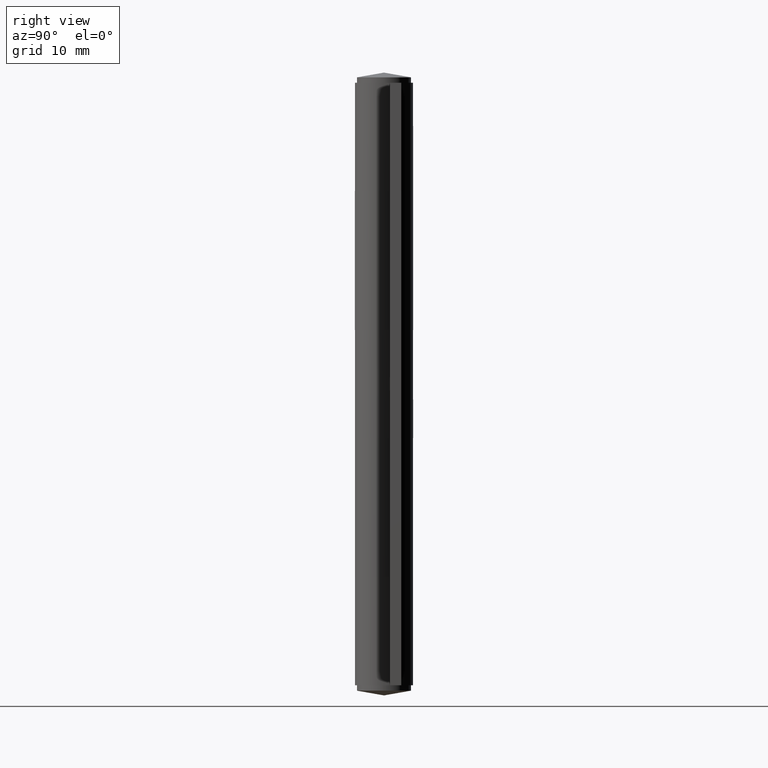
[diagram: clean part render]
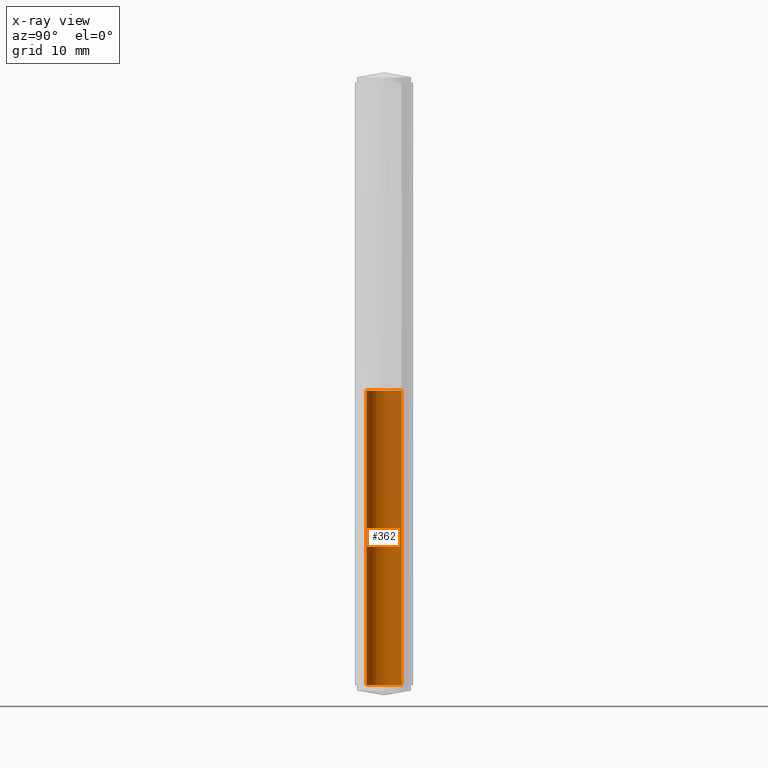
[diagram: x-ray — body ghosted, one internal face saturated and labeled with its STEP entity id]
A machine part, right view, then the same camera in x-ray: the body is ghosted and one INTERNAL B-rep face — a face not visible from any outside direction — is saturated and labeled: STEP entity #362.
In plain terms, the highlighted face is a freeform B-spline surface patch.
Its self-contained STEP definition (entity closure, byte-faithful):
#229=CARTESIAN_POINT('',(-2.599990999999949,0.0,-0.000007629394531));
#230=VERTEX_POINT('',#229);
#231=CARTESIAN_POINT('',(-0.158725653697154,-2.595141492662662,-0.000007629394531));
#232=VERTEX_POINT('',#231);
#233=CARTESIAN_POINT('',(-2.599990999999949,0.0,-0.000007629394531));
#234=CARTESIAN_POINT('',(-2.599990999999949,-2.445827307275927,-0.000007629394531));
#235=CARTESIAN_POINT('',(-0.158725653697155,-2.595141492662664,-0.000007629394531));
#243=(BOUNDED_CURVE()B_SPLINE_CURVE(2,(#233,#234,#235),.UNSPECIFIED.,.F.,.U.)B_SPLINE_CURVE_WITH_KNOTS((3,3),(0.500000000000000,0.739332962219134),.UNSPECIFIED.)CURVE()GEOMETRIC_REPRESENTATION_ITEM()RATIONAL_B_SPLINE_CURVE((1.0,0.719603993309918,0.976072041624263))REPRESENTATION_ITEM(''));
#244=EDGE_CURVE('',#230,#232,#243,.T.);
#246=CARTESIAN_POINT('',(0.158725653697258,2.595141492662663,-0.000007629394531));
#247=VERTEX_POINT('',#246);
#248=CARTESIAN_POINT('',(0.158725653697258,2.595141492662664,-0.000007629394531));
#249=CARTESIAN_POINT('',(0.079436909773711,2.599991000000000,-0.000007629394545));
#250=CARTESIAN_POINT('',(5.139392E-014,2.599991000000000,-0.000007629394531));
#251=CARTESIAN_POINT('',(-2.599990999999949,2.599991000000000,-0.000007629394531));
#252=CARTESIAN_POINT('',(-2.599990999999949,0.0,-0.000007629394531));
#260=(BOUNDED_CURVE()B_SPLINE_CURVE(2,(#248,#249,#250,#251,#252),.UNSPECIFIED.,.F.,.U.)B_SPLINE_CURVE_WITH_KNOTS((3,2,3),(0.239332962219134,0.250000000000000,0.500000000000000),.UNSPECIFIED.)CURVE()GEOMETRIC_REPRESENTATION_ITEM()RATIONAL_B_SPLINE_CURVE((0.976072041624263,0.987502787876630,1.0,0.707106781186548,1.0))REPRESENTATION_ITEM(''));
#261=EDGE_CURVE('',#247,#230,#260,.T.);
#296=CARTESIAN_POINT('',(0.158725653353824,2.595141492683667,-1.087507629397862));
#297=CARTESIAN_POINT('',(-2.436415839329843,2.753867146037440,-1.087507629397862));
#298=CARTESIAN_POINT('',(-2.595141492683616,0.158725653353772,-1.087507629397862));
#299=CARTESIAN_POINT('',(-2.753867146037389,-2.436415839329894,-1.087507629397862));
#300=CARTESIAN_POINT('',(-0.158725653353721,-2.595141492683667,-1.087507629397862));
#301=CARTESIAN_POINT('',(0.158725653353829,2.595141492683667,44.614679870741483));
#302=CARTESIAN_POINT('',(-2.436415839329837,2.753867146037440,44.614679870741476));
#303=CARTESIAN_POINT('',(-2.595141492683610,0.158725653353772,44.614679870741483));
#304=CARTESIAN_POINT('',(-2.753867146037383,-2.436415839329894,44.614679870741476));
#305=CARTESIAN_POINT('',(-0.158725653353716,-2.595141492683667,44.614679870741483));
#313=(BOUNDED_SURFACE()B_SPLINE_SURFACE(2,1,((#296,#301),(#297,#302),(#298,#303),(#299,#304),(#300,#305)),.UNSPECIFIED.,.F.,.F.,.U.)B_SPLINE_SURFACE_WITH_KNOTS((3,2,3),(2,2),(0.0,4.307806136991941,8.615612273983881),(0.0,45.702187500139352),.UNSPECIFIED.)GEOMETRIC_REPRESENTATION_ITEM()RATIONAL_B_SPLINE_SURFACE(((1.0,1.0),(0.707106781186548,0.707106781186548),(1.0,1.0),(0.707106781186548,0.707106781186548),(1.0,1.0)))REPRESENTATION_ITEM('')SURFACE());
#314=ORIENTED_EDGE('',*,*,#261,.T.);
#315=ORIENTED_EDGE('',*,*,#244,.T.);
#316=CARTESIAN_POINT('',(-0.158725653697150,-2.595141492662663,43.499992370738070));
#317=VERTEX_POINT('',#316);
#318=CARTESIAN_POINT('',(-0.158725653697154,-2.595141492662662,-0.000007629394531));
#319=CARTESIAN_POINT('',(-0.158725653697150,-2.595141492662663,43.499992370738070));
#320=QUASI_UNIFORM_CURVE('',1,(#318,#319),.UNSPECIFIED.,.F.,.U.);
#321=EDGE_CURVE('',#232,#317,#320,.T.);
#322=ORIENTED_EDGE('',*,*,#321,.T.);
#323=CARTESIAN_POINT('',(-2.599990999999943,0.0,43.499992370738070));
#324=VERTEX_POINT('',#323);
#325=CARTESIAN_POINT('',(-2.599990999999943,0.0,43.499992370738070));
#326=CARTESIAN_POINT('',(-2.599990999999943,-2.445827307275927,43.499992370738077));
#327=CARTESIAN_POINT('',(-0.158725653697150,-2.595141492662664,43.499992370738077));
#335=(BOUNDED_CURVE()B_SPLINE_CURVE(2,(#325,#326,#327),.UNSPECIFIED.,.F.,.U.)B_SPLINE_CURVE_WITH_KNOTS((3,3),(0.500000000000000,0.739332962219134),.UNSPECIFIED.)CURVE()GEOMETRIC_REPRESENTATION_ITEM()RATIONAL_B_SPLINE_CURVE((1.0,0.719603993309918,0.976072041624263))REPRESENTATION_ITEM(''));
#336=EDGE_CURVE('',#324,#317,#335,.T.);
#337=ORIENTED_EDGE('',*,*,#336,.F.);
#338=CARTESIAN_POINT('',(0.158725653697263,2.595141492662663,43.499992370738070));
#339=VERTEX_POINT('',#338);
#340=CARTESIAN_POINT('',(0.158725653697263,2.595141492662664,43.499992370738077));
#341=CARTESIAN_POINT('',(0.079436909773717,2.599991000000000,43.499992370738063));
#342=CARTESIAN_POINT('',(5.672096E-014,2.599991000000000,43.499992370738070));
#343=CARTESIAN_POINT('',(-2.599990999999943,2.599991000000000,43.499992370738063));
#344=CARTESIAN_POINT('',(-2.599990999999943,0.0,43.499992370738070));
#352=(BOUNDED_CURVE()B_SPLINE_CURVE(2,(#340,#341,#342,#343,#344),.UNSPECIFIED.,.F.,.U.)B_SPLINE_CURVE_WITH_KNOTS((3,2,3),(0.239332962219134,0.250000000000000,0.500000000000000),.UNSPECIFIED.)CURVE()GEOMETRIC_REPRESENTATION_ITEM()RATIONAL_B_SPLINE_CURVE((0.976072041624263,0.987502787876630,1.0,0.707106781186548,1.0))REPRESENTATION_ITEM(''));
#353=EDGE_CURVE('',#339,#324,#352,.T.);
#354=ORIENTED_EDGE('',*,*,#353,.F.);
#355=CARTESIAN_POINT('',(0.158725653697258,2.595141492662663,-0.000007629394531));
#356=CARTESIAN_POINT('',(0.158725653697263,2.595141492662663,43.499992370738070));
#357=QUASI_UNIFORM_CURVE('',1,(#355,#356),.UNSPECIFIED.,.F.,.U.);
#358=EDGE_CURVE('',#247,#339,#357,.T.);
#359=ORIENTED_EDGE('',*,*,#358,.F.);
#360=EDGE_LOOP('',(#314,#315,#322,#337,#354,#359));
#361=FACE_OUTER_BOUND('',#360,.T.);
#362=ADVANCED_FACE('',(#361),#313,.T.);